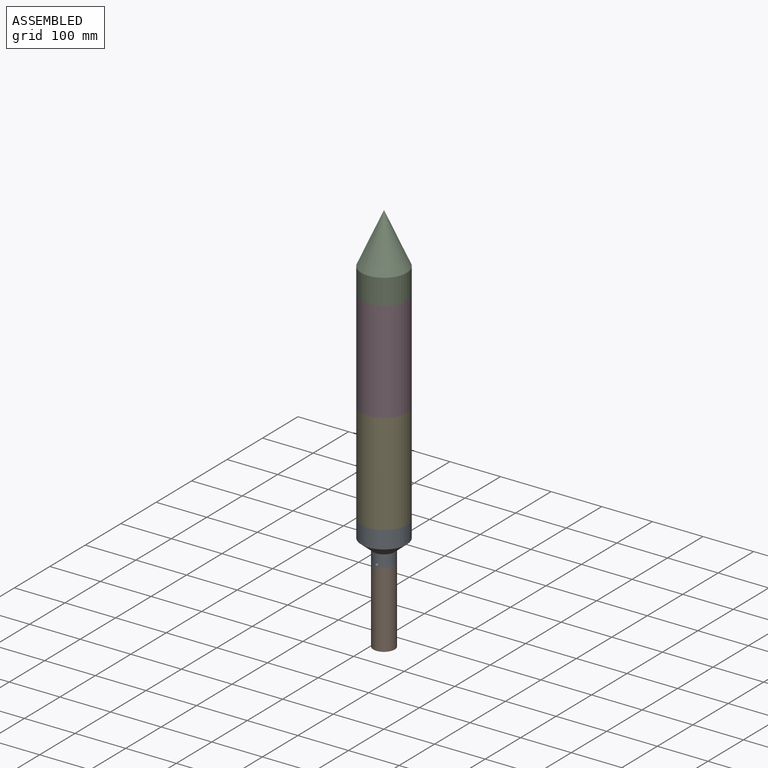
[diagram: assembled view]
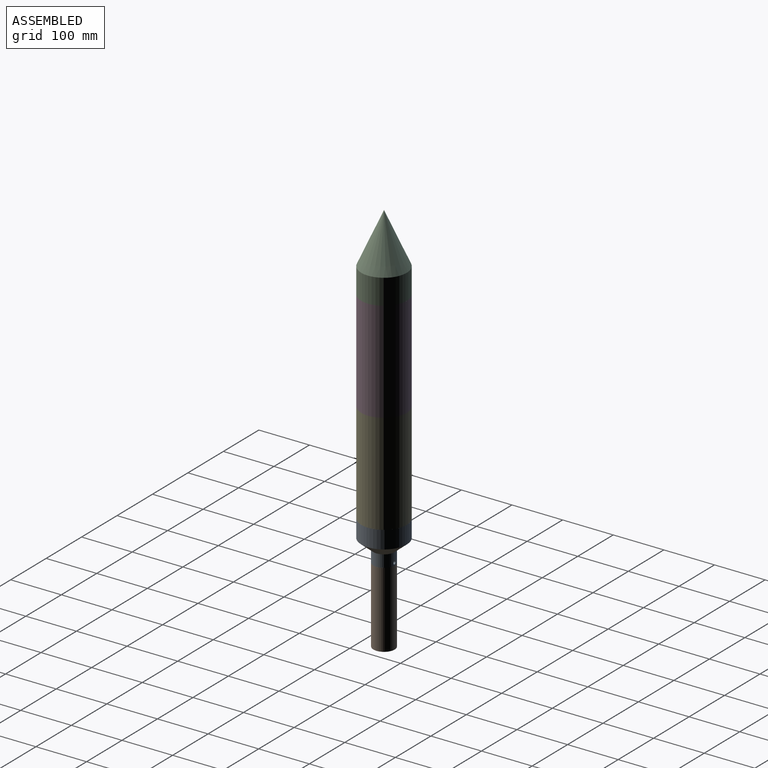
[diagram: assembled view, second angle]
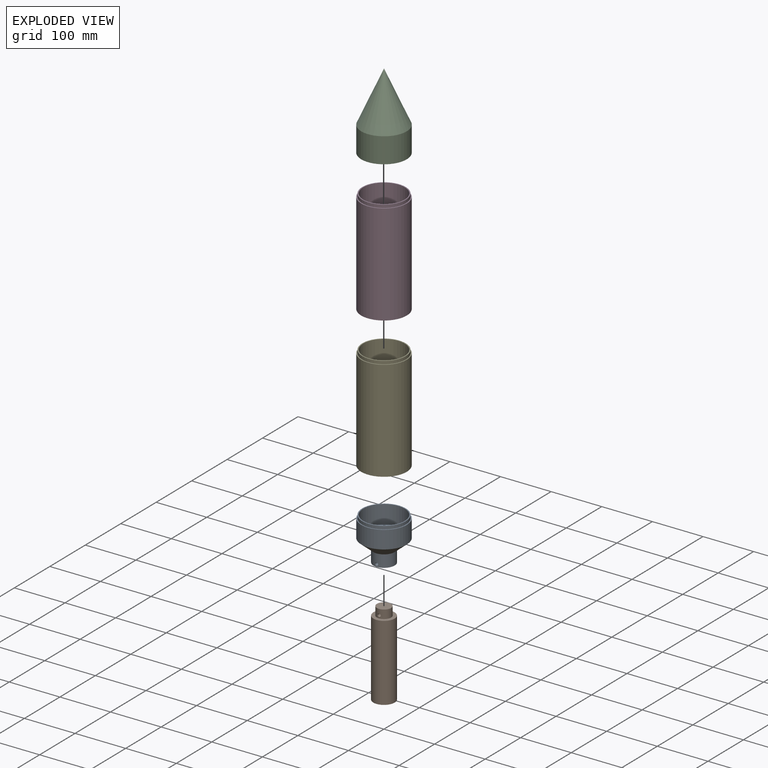
[diagram: exploded view]
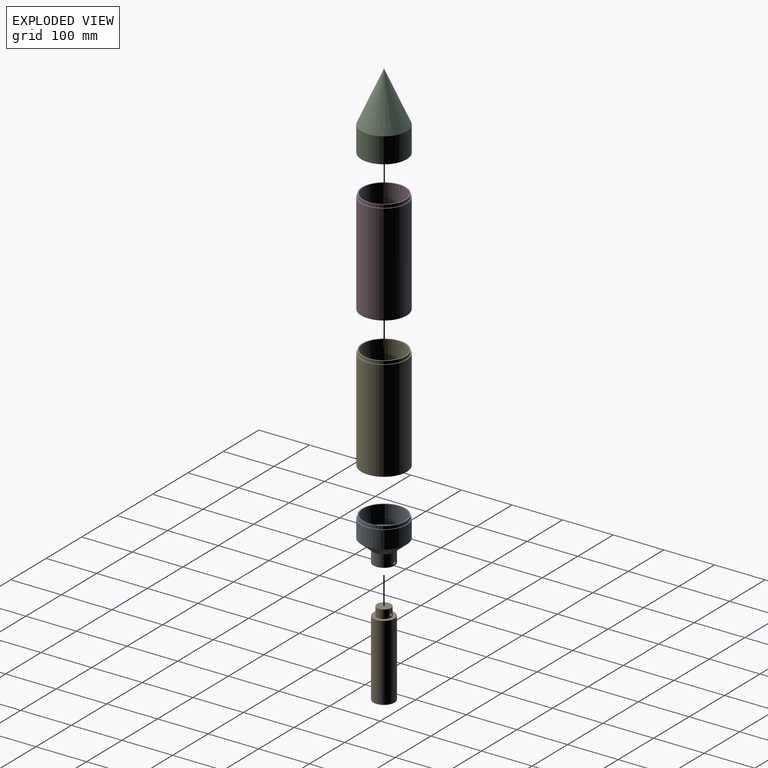
[diagram: exploded view, second angle]
ASSEMBLY  parts=5 mates=8
PART A: 13 faces, bbox 90x90x85 mm
  f0: cylinder r=14mm len=28mm, axis (0,0,-1), area 1438.8mm2, adj f4,f5,f11,f12
  f1: cylinder r=21mm len=42mm, axis (0,0,-1), area 3110.3mm2, adj f5,f6,f11,f12
  f2: cylinder r=41mm len=82mm, axis (0,0,-1), area 9274mm2, adj f3,f10
  f3: plane 82x82mm, normal (0,0,1), area 5281mm2, adj f2
  f4: plane 28x28mm, normal (0,0,-1), area 615.8mm2, adj f0
  f5: plane 42x42mm, normal (0,0,-1), area 769.7mm2, adj f0,f1
  f6: cone r=21mm half-angle=50.2deg, axis (0,0,1), area 6477.7mm2, adj f1,f7
  f7: cylinder r=45mm len=90mm, axis (0,0,-1), area 9896mm2, adj f6,f8
  f8: plane 90x90mm, normal (0,0,1), area 552.9mm2, adj f7,f9
  f9: cylinder r=43mm len=86mm, axis (0,0,-1), area 1621.1mm2, adj f8,f10
  f10: plane 86x86mm, normal (0,0,1), area 527.8mm2, adj f2,f9
  f11: cylinder r=3mm len=7.33mm, axis (0,1,0), area 133mm2, adj f0,f1
  f12: cylinder r=3mm len=7.33mm, axis (0,1,0), area 133mm2, adj f0,f1
PART B: 11 faces, bbox 42x42x167 mm
  f0: cone r=0mm half-angle=56.3deg, axis (0,0,-1), area 135.9mm2, adj f1
  f1: cylinder r=6mm len=40mm, axis (0,0,1), area 1449.5mm2, adj f0,f2,f9,f10
  f2: plane 32x32mm, normal (0,0,-1), area 691.2mm2, adj f1,f3
  f3: cylinder r=16mm len=120mm, axis (0,0,1), area 12063.7mm2, adj f2,f4
  f4: plane 42x42mm, normal (0,0,-1), area 581.2mm2, adj f3,f5
  f5: cylinder r=21mm len=150mm, axis (0,0,1), area 19792mm2, adj f4,f6
  f6: plane 42x42mm, normal (0,0,1), area 769.7mm2, adj f5,f7
  f7: cylinder r=14mm len=28mm, axis (0,0,1), area 1438.7mm2, adj f6,f8,f9,f10
  f8: plane 28x28mm, normal (0,0,1), area 615.8mm2, adj f7
  f9: cylinder r=3mm len=8.8mm, axis (1,0,0), area 155.2mm2, adj f1,f7
  f10: cylinder r=3mm len=8.8mm, axis (1,0,0), area 155.2mm2, adj f1,f7
PART C: 7 faces, bbox 90x90x150 mm
  f0: cylinder r=41mm len=82mm, axis (0,0,-1), area 12336.7mm2, adj f1,f6
  f1: plane 86x86mm, normal (0,0,-1), area 527.8mm2, adj f0,f2
  f2: cylinder r=43mm len=86mm, axis (0,0,-1), area 1621.1mm2, adj f1,f3
  f3: plane 90x90mm, normal (0,0,-1), area 552.9mm2, adj f2,f4
  f4: cylinder r=45mm len=90mm, axis (0,0,-1), area 14137.2mm2, adj f3,f5
  f5: cone r=45mm half-angle=24.2deg, axis (0,0,-1), area 15502.6mm2, adj f4
  f6: cone r=0mm half-angle=24.2deg, axis (0,0,-1), area 12869.1mm2, adj f0
PART D: 8 faces, bbox 90x90x206 mm
  f0: plane 86x86mm, normal (0,0,1), area 527.8mm2, adj f1,f7
  f1: cylinder r=41mm len=200mm, axis (0,0,-1), area 51522.1mm2, adj f0,f2
  f2: plane 86x86mm, normal (0,0,-1), area 527.8mm2, adj f1,f3
  f3: cylinder r=43mm len=86mm, axis (0,0,-1), area 1621.1mm2, adj f2,f4
  f4: plane 90x90mm, normal (0,0,-1), area 552.9mm2, adj f3,f5
  f5: cylinder r=45mm len=200mm, axis (0,0,-1), area 56548.7mm2, adj f4,f6
  f6: plane 90x90mm, normal (0,0,1), area 552.9mm2, adj f5,f7
  f7: cylinder r=43mm len=86mm, axis (0,0,-1), area 1621.1mm2, adj f0,f6
PART E: same geometry as D
PLACE A t=(-50.39,-227.76,-367.3)mm
PLACE B rot(axis=(0,0,-1),90deg) t=(-50.39,-227.76,-498.08)mm
PLACE C t=(-50.39,-227.76,90.57)mm
PLACE D rot(axis=(1,0,0),180deg) t=(-50.39,-227.76,-36.93)mm
PLACE E rot(axis=(1,0,0),180deg) t=(-50.39,-227.76,-236.93)mm
MATE planar E.f1 <-> A.f0  axis (0,0,-1) through (-50.39,-227.76,-341.91)mm
MATE planar C.f6 <-> D.f1  axis (0,0,-1) through (-50.39,-227.76,58.09)mm
MATE cylindrical A.f0 <-> E.f1  axis (0,0,-1) through (-50.39,-227.76,-338.91)mm
MATE cylindrical B.f0 <-> A.f0  axis (0,0,1) through (-50.39,-227.76,-412.41)mm
MATE cylindrical E.f1 <-> D.f1  axis (0,0,1) through (-50.39,-227.76,-138.91)mm
MATE planar E.f1 <-> D.f1  axis (0,0,1) through (-50.39,-227.76,-141.91)mm
MATE planar B.f0 <-> A.f0  axis (0,0,1) through (-50.39,-227.76,-420.91)mm
MATE cylindrical C.f6 <-> D.f1  axis (0,0,-1) through (-50.39,-227.76,64.09)mm
